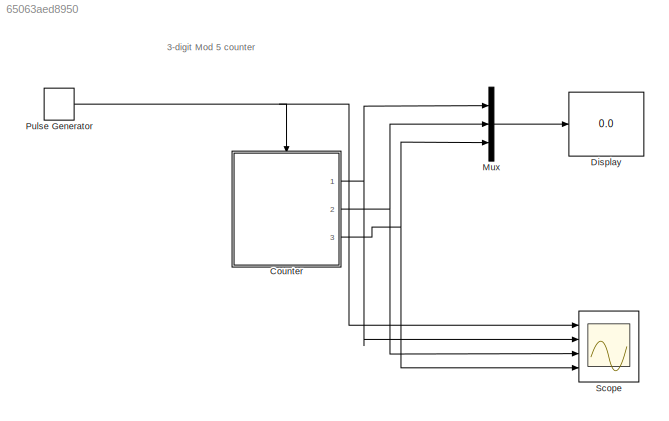
MODEL slx_65063aed8950
KIND model
CONFIG AbsTol = auto
CONFIG EnableMultiTasking = off
CONFIG FixedStep = auto
CONFIG MaxStep = auto
CONFIG MinStep = auto
CONFIG RelTol = 1e-3
CONFIG SampleTimeConstraint = Unconstrained
CONFIG Solver = VariableStepAuto
CONFIG SolverName = VariableStepAuto
CONFIG StartTime = 0.0
CONFIG StopTime = 10.0
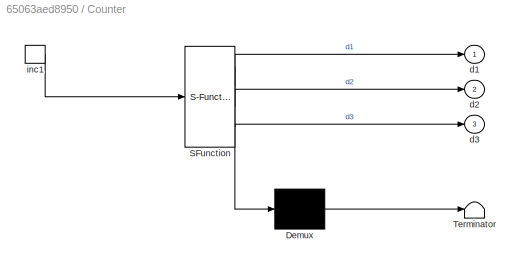
BLOCK [SubSystem] Counter 
  ErrorFcn = Stateflow.Translate.translate
  PermitHierarchicalResolution = ExplicitOnly
  Ports = [0, 3, 0, 1]
  RequestExecContextInheritance = off
  SFBlockType = Chart
  TreatAsAtomicUnit = on
BLOCK [Demux] Counter / Demux 
  Outputs = 1
  Ports = [1, 1]
BLOCK [S-Function] Counter / SFunction 
  EnableBusSupport = on
  FunctionName = sf_sfun
  PortCounts = [1 4]
  Ports = [1, 4]
  SFcnIsStateOwnerBlock = off
  SFunctionDeploymentMode = off
  Tag = Stateflow S-Function 3
BLOCK [Terminator] Counter / Terminator 
BLOCK [Outport] Counter /d1
BLOCK [Outport] Counter /d2
  Port = 2
BLOCK [Outport] Counter /d3
  Port = 3
BLOCK [TriggerPort] Counter /inc1
  Ports = [0, 1]
  ShowOutputPort = on
  StatesWhenEnabling = held
  VariantControl = (inherit)
BLOCK [Display] Display 
  Decimation = 1
  Ports = [1]
BLOCK [Mux] Mux
  DisplayOption = bar
  Inputs = 3
  Ports = [3, 1]
BLOCK [DiscretePulseGenerator] Pulse Generator 
  Period = 0.1
  Ports = [0, 1]
  PulseType = Time based
  PulseWidth = 50
BLOCK [Scope] Scope
  Floating = off
  NumInputPorts = 4
  Ports = [4]
  ScopeSpecificationString = Simulink.scopes.TimeScopeBlockCfg('CurrentConfiguration', extmgr.ConfigurationSet(extmgr.Configuration('Core','General UI',true),extmgr.Configuration('Core','Source UI',true),extmgr.Configuration('Sources','WiredSimulink',true),extmgr.Configuration('Visuals','Time Domain',true,'SerializedDisplays',{struct('MinYLimReal','-0.125','MaxYLimReal','1.125','YLabelReal','','MinYLimMag','0.00000','MaxYLimM...<+3364ch>
ANNOTATION (root): 3-digit Mod 5 counter
NET Counter :1 -> Mux:1, Scope:2
NET Counter :2 -> Mux:2, Scope:3
NET Counter :3 -> Mux:3, Scope:4
LINE Mux:1 -> Display :1
NET Pulse Generator :1 -> Counter :trigger, Scope:1
note: NET lines group one-source signal fan-out (src -> all destinations, sorted); 1:1 wires keep LINE
CHART Counter  states=18 transitions=18
  STATE_LABEL 'digit1'
  STATE_LABEL 'Zero\nen: d1= 0;'
  STATE_LABEL 'One\nen: d1= 1;'
  STATE_LABEL 'Three\nen: d1= 3;'
  STATE_LABEL 'Two\nen:d1=2;'
  STATE_LABEL 'Four\nen:d1=4;'
  STATE_LABEL 'inc1'
  STATE_LABEL 'inc1'
  STATE_LABEL 'inc1'
  STATE_LABEL 'inc1'
  STATE_LABEL 'inc1/{inc2}'
  STATE_LABEL 'Zero\nen: d1= 0;'
  STATE_LABEL 'One\nen: d1= 1;'
  STATE_LABEL 'Three\nen: d1= 3;'
  STATE_LABEL 'Two\nen:d1=2;'
  STATE_LABEL 'Four\nen:d1=4;'
  STATE_LABEL 'digit2'
  STATE_LABEL 'Zero\nen: d2= 0;'
  STATE_LABEL 'One\nen: d2= 1;'
  STATE_LABEL 'Four\nen: d2= 4;'
  STATE_LABEL 'Two\nen:d2=2;'
  STATE_LABEL 'Three\nen:d2=3;'
  STATE_LABEL 'inc2'
  STATE_LABEL 'inc2'
  STATE_LABEL 'inc2'
  STATE_LABEL 'inc2'
  STATE_LABEL 'inc2/{inc3}'
  STATE_LABEL 'Zero\nen: d2= 0;'
  STATE_LABEL 'One\nen: d2= 1;'
  STATE_LABEL 'Four\nen: d2= 4;'
  STATE_LABEL 'Two\nen:d2=2;'
  STATE_LABEL 'Three\nen:d2=3;'
  STATE_LABEL 'digit3'
  STATE_LABEL 'Zero\nen: d3= 0;'
  STATE_LABEL 'One\nen: d3= 1;'
  STATE_LABEL 'Two\nen: d3= 2;'
  STATE_LABEL 'Three\nen: d3= 3;'
  STATE_LABEL 'Four\nen: d3= 4;'
  STATE_LABEL 'inc3'
  STATE_LABEL 'inc3'
CHART  states=0 transitions=0
